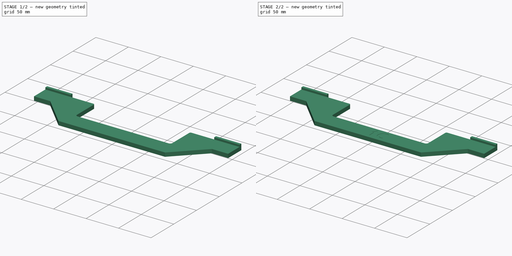
[diagram: build sequence overview — one tinted view per stage of 2, left to right]
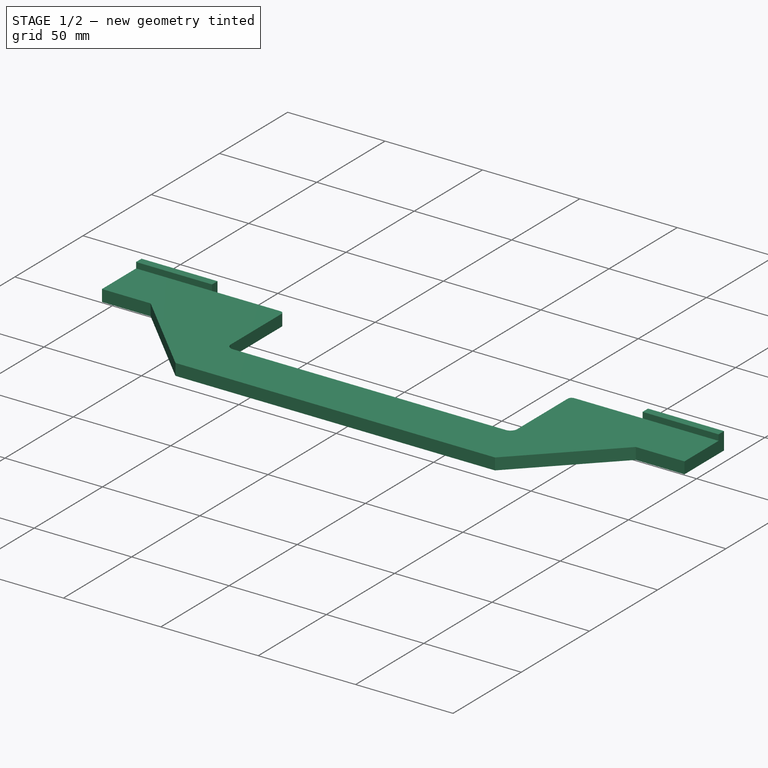
[diagram: stage 1 of 2 — iso view after this stage's code; geometry added in this stage tinted green]
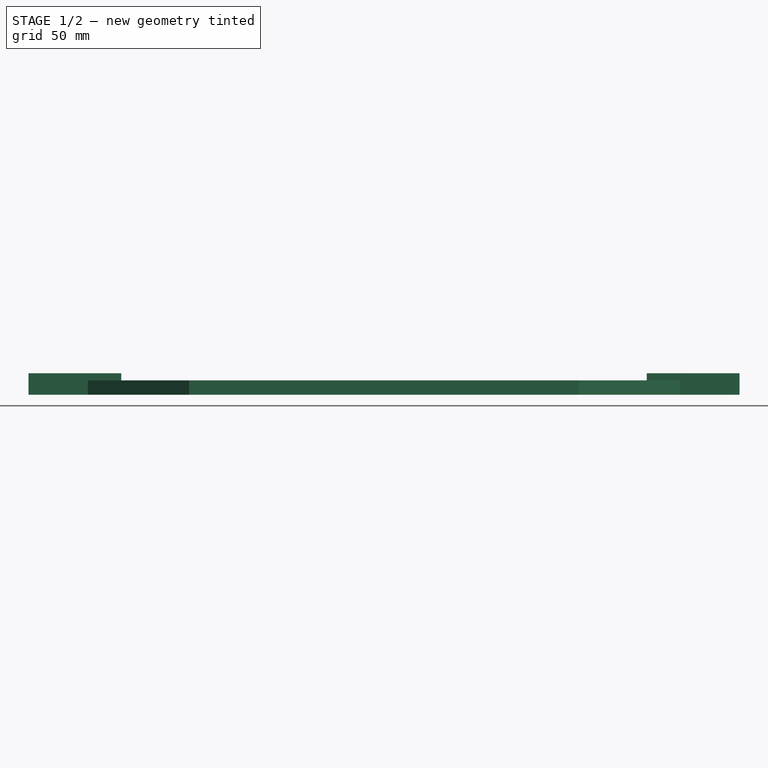
[diagram: stage 1 of 2 — front view after this stage's code; geometry added in this stage tinted green]
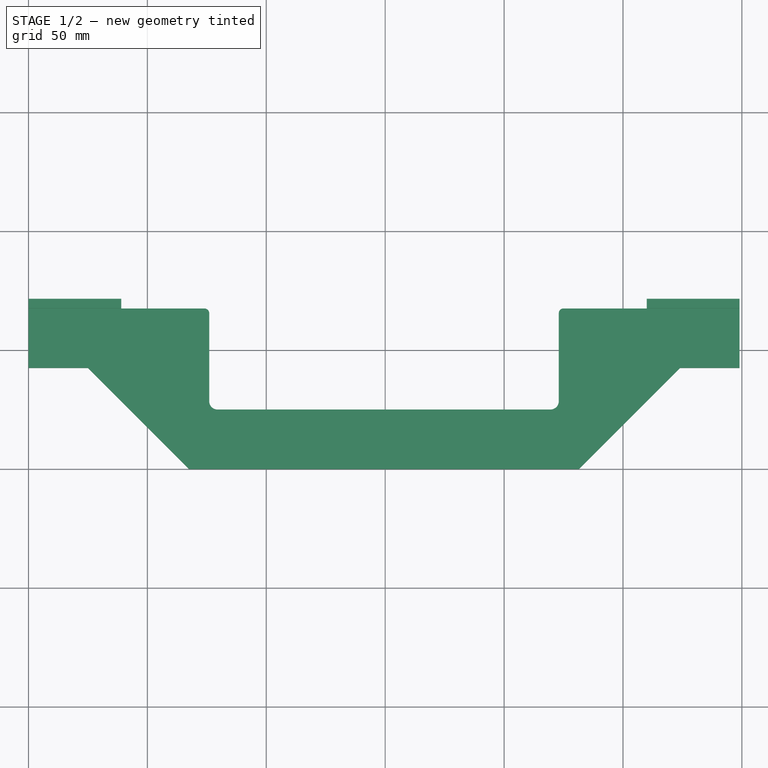
[diagram: stage 1 of 2 — top view after this stage's code; geometry added in this stage tinted green]
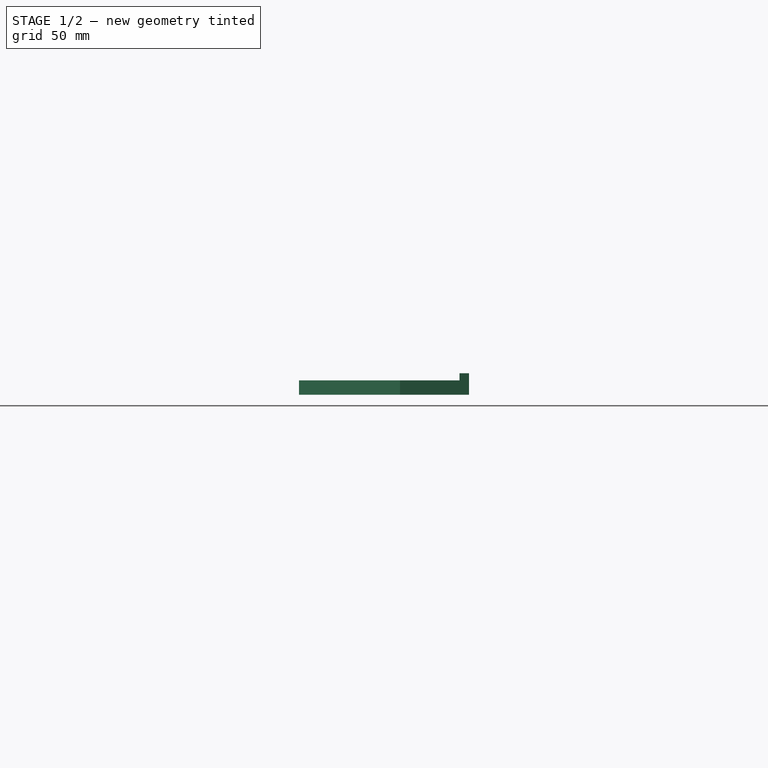
[diagram: stage 1 of 2 — right view after this stage's code; geometry added in this stage tinted green]
FCSTD DOCUMENT  (FreeCAD 1.0R39109 (Git))
Label: RearSheet
License: All rights reserved
LicenseURL: https://en.wikipedia.org/wiki/All_rights_reserved
objects: Sketcher::SketchObject×3, PartDesign::Pad×2, PartDesign::Pocket×1, PartDesign::Body×1
note: 16 computed .brp shape members not serialized (recipe doc carries the construction recipe); baked Part::Feature solids carry a one-line shape summary decoded from their .brp

FEATURE [Sketcher::SketchObject] Sketch001
  ArcFitTolerance = 1e-06
  AttachmentSupport = -> [XY_Plane]
  FullyConstrained = true
  MakeInternals = false
  MapMode = 5
  sketch-geometry (20):
    g0: LineSegment StartX=67.5 StartY=0 StartZ=0 EndX=231.5 EndY=0 EndZ=0
    g1: LineSegment StartX=299 StartY=42.5 StartZ=0 EndX=299 EndY=67.5 EndZ=0
    g2: LineSegment StartX=299 StartY=67.5 StartZ=0 EndX=225 EndY=67.5 EndZ=0
    g3: LineSegment StartX=223 StartY=65.5 StartZ=0 EndX=223 EndY=28.5 EndZ=0
    g4: LineSegment StartX=219.5 StartY=25 StartZ=0 EndX=79.5 EndY=25 EndZ=0
    g5: LineSegment StartX=76 StartY=28.5 StartZ=0 EndX=76 EndY=65.5 EndZ=0
    g6: LineSegment StartX=0 StartY=67.5 StartZ=0 EndX=0 EndY=42.5 EndZ=0
    g7: ArcOfCircle CenterX=79.5 CenterY=28.5 CenterZ=0 NormalX=0 NormalY=0 NormalZ=1 AngleXU=0 Radius=3.5 StartAngle=3.14159 EndAngle=4.71239
    g8: GeomPoint [constr] X=76 Y=25 Z=0
    g9: ArcOfCircle CenterX=219.5 CenterY=28.5 CenterZ=0 NormalX=0 NormalY=0 NormalZ=1 AngleXU=0 Radius=3.5 StartAngle=4.71239 EndAngle=6.28319
    g10: GeomPoint [constr] X=223 Y=25 Z=0
    g11: ArcOfCircle CenterX=225 CenterY=65.5 CenterZ=0 NormalX=0 NormalY=0 NormalZ=1 AngleXU=0 Radius=2 StartAngle=1.5708 EndAngle=3.14159
    g12: GeomPoint [constr] X=223 Y=67.5 Z=0
    g13: ArcOfCircle CenterX=74 CenterY=65.5 CenterZ=0 NormalX=0 NormalY=0 NormalZ=1 AngleXU=0 Radius=2 StartAngle=-9e-16 EndAngle=1.5708
    g14: GeomPoint [constr] X=76 Y=67.5 Z=0
    g15: LineSegment StartX=0 StartY=67.5 StartZ=0 EndX=74 EndY=67.5 EndZ=0
    g16: LineSegment StartX=299 StartY=42.5 StartZ=0 EndX=274 EndY=42.5 EndZ=0
    g17: LineSegment StartX=274 StartY=42.5 StartZ=0 EndX=231.5 EndY=0 EndZ=0
    g18: LineSegment StartX=0 StartY=42.5 StartZ=0 EndX=25 EndY=42.5 EndZ=0
    g19: LineSegment StartX=25 StartY=42.5 StartZ=0 EndX=67.5 EndY=0 EndZ=0
  constraints (52):
    c: Vertical(g1)
    c: Horizontal(g2)
    c: Vertical(g3)
    c: Horizontal(g4)
    c: Vertical(g5)
    c: PointOnObject(g6,g-2)
    c: Coincident(g1,g2)
    c: Horizontal(g12,g14)
    c: PointOnObject(g8,g5)
    c: PointOnObject(g8,g4)
    c: Tangent(g5,g7) = 1.5708
    c: Tangent(g4,g7) = 1.5708
    c: PointOnObject(g10,g4)
    c: PointOnObject(g10,g3)
    c: Tangent(g4,g9) = 1.5708
    c: Tangent(g3,g9) = 1.5708
    c: PointOnObject(g12,g3)
    c: PointOnObject(g12,g2)
    c: Tangent(g3,g11) = -1.5708
    c: Tangent(g2,g11) = -1.5708
    c: PointOnObject(g14,g5)
    c: Tangent(g5,g13) = -1.5708
    c: Equal(g7,g9)
    c: Equal(g11,g13)
    c: DistanceX(g5,g3) = 147
    c: DistanceY(g4,g13) = 42.5
    c: Radius(g7) = 3.5
    c: Radius(g13) = 2
    c: Horizontal(g0)
    c: Vertical(g6)
    c: PointOnObject(g0,g-1)
    c: Distance(g6,g-1) = 67.5
    c: DistanceX(g2,g2) = 74
    c: Coincident(g15,g6)
    c: Horizontal(g15)
    c: Tangent(g15,g13) = 1.5708
    c: Equal(g2,g15)
    c: DistanceY(g1,g1) = 25
    c: Coincident(g16,g1)
    c: Horizontal(g16)
    c: Coincident(g17,g16)
    c: Coincident(g17,g0)
    c: Angle(g17,g0) = 2.35619
    c: Coincident(g18,g6)
    c: Horizontal(g18)
    c: Coincident(g19,g18)
    c: Coincident(g19,g0)
    c: Angle(g0,g19) = 2.35619
    c: Equal(g18,g16)
    c: Equal(g1,g6)
    c: Distance(g16,g16) = 25
    c: Horizontal(g2,g13)
FEATURE [PartDesign::Pad] Pad
  Direction = (0,0,1)
  Length = 6
  Length2 = 10
  Profile = -> Sketch001
  ReferenceAxis = -> Sketch001 [N_Axis]
  Refine = true
  Suppressed = false
  Type = 0
FEATURE [Sketcher::SketchObject] Sketch002
  ArcFitTolerance = 1e-06
  AttachmentSupport = -> [XY_Plane]
  ExternalGeometry = -> [Pad]
  FullyConstrained = true
  MakeInternals = false
  MapMode = 5
  sketch-geometry (8):
    g0: LineSegment StartX=0 StartY=67.5 StartZ=0 EndX=39 EndY=67.5 EndZ=0
    g1: LineSegment StartX=39 StartY=67.5 StartZ=0 EndX=39 EndY=71.5 EndZ=0
    g2: LineSegment StartX=39 StartY=71.5 StartZ=0 EndX=0 EndY=71.5 EndZ=0
    g3: LineSegment StartX=0 StartY=71.5 StartZ=0 EndX=0 EndY=67.5 EndZ=0
    g4: LineSegment StartX=299 StartY=67.5 StartZ=0 EndX=299 EndY=71.5 EndZ=0
    g5: LineSegment StartX=299 StartY=71.5 StartZ=0 EndX=260 EndY=71.5 EndZ=0
    g6: LineSegment StartX=260 StartY=71.5 StartZ=0 EndX=260 EndY=67.5 EndZ=0
    g7: LineSegment StartX=260 StartY=67.5 StartZ=0 EndX=299 EndY=67.5 EndZ=0
  constraints (22):
    c: Coincident(g0,g1)
    c: Coincident(g1,g2)
    c: Coincident(g2,g3)
    c: Coincident(g3,g0)
    c: Horizontal(g0)
    c: Horizontal(g2)
    c: Vertical(g1)
    c: Vertical(g3)
    c: Coincident(g4,g5)
    c: Coincident(g5,g6)
    c: Coincident(g6,g7)
    c: Coincident(g7,g4)
    c: Vertical(g4)
    c: Vertical(g6)
    c: Horizontal(g5)
    c: Horizontal(g7)
    c: Distance(g3,g3) = 4
    c: DistanceX(g2,g2) = 39
    c: Equal(g1,g6)
    c: Equal(g2,g5)
    c: Coincident(g4,g-4)
    c: Coincident(g0,g-3)
FEATURE [PartDesign::Pad] Pad001
  BaseFeature = -> Pad
  Direction = (0,0,1)
  Length = 9
  Length2 = 10
  Profile = -> Sketch002
  ReferenceAxis = -> Sketch002 [N_Axis]
  Refine = true
  Suppressed = false
  Type = 0
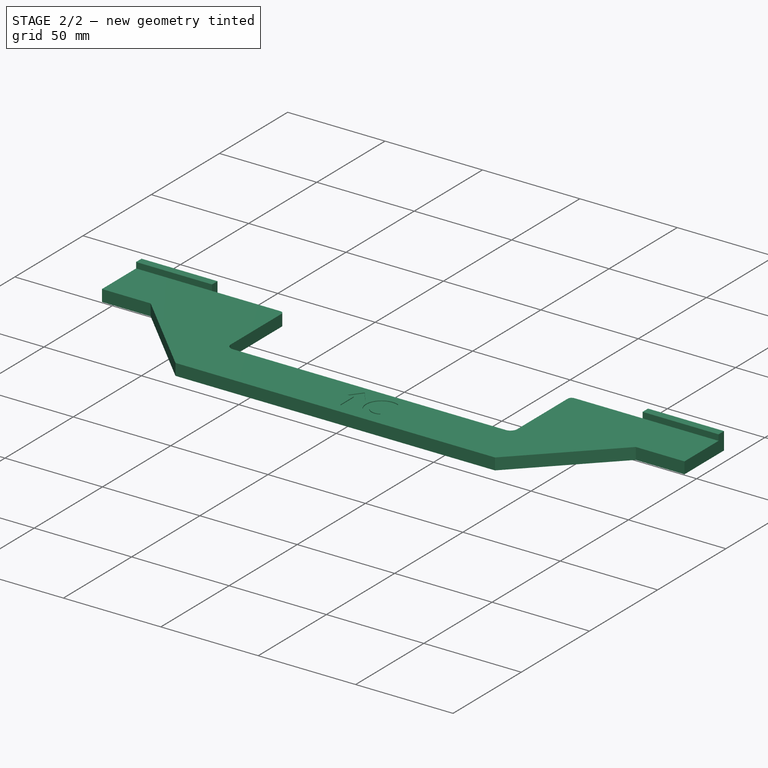
[diagram: stage 2 of 2 — iso view after this stage's code; geometry added in this stage tinted green]
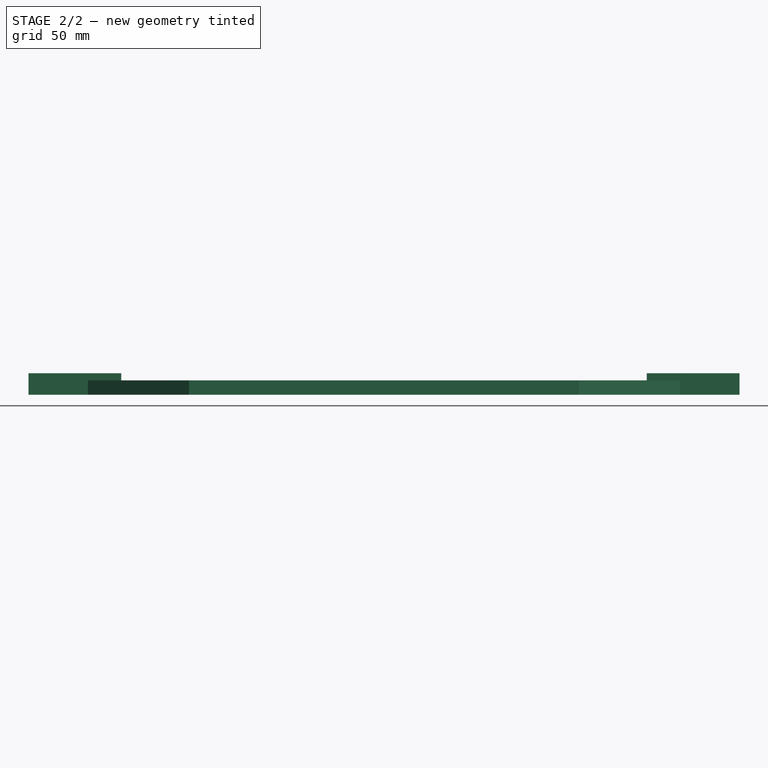
[diagram: stage 2 of 2 — front view after this stage's code; geometry added in this stage tinted green]
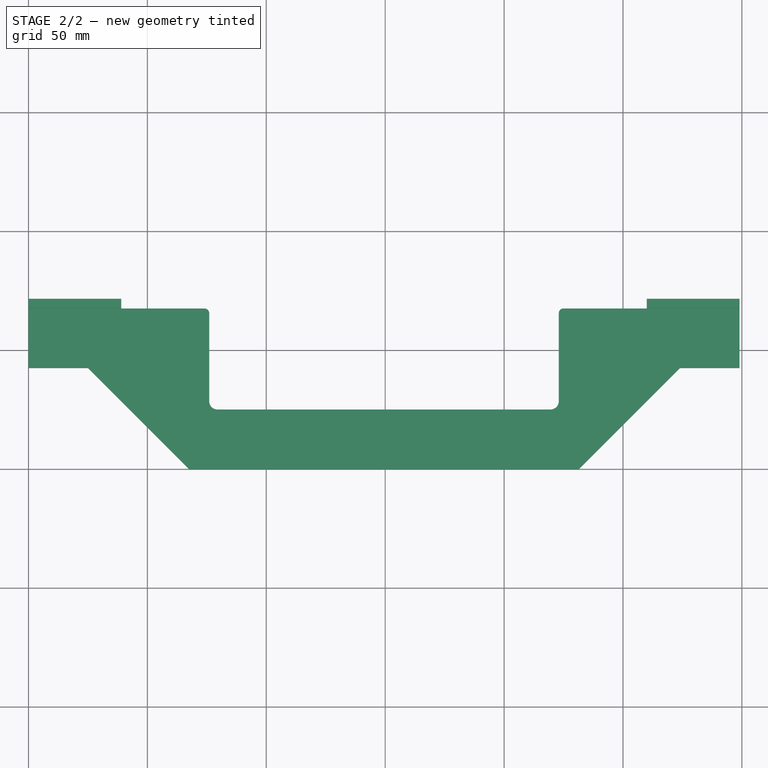
[diagram: stage 2 of 2 — top view after this stage's code; geometry added in this stage tinted green]
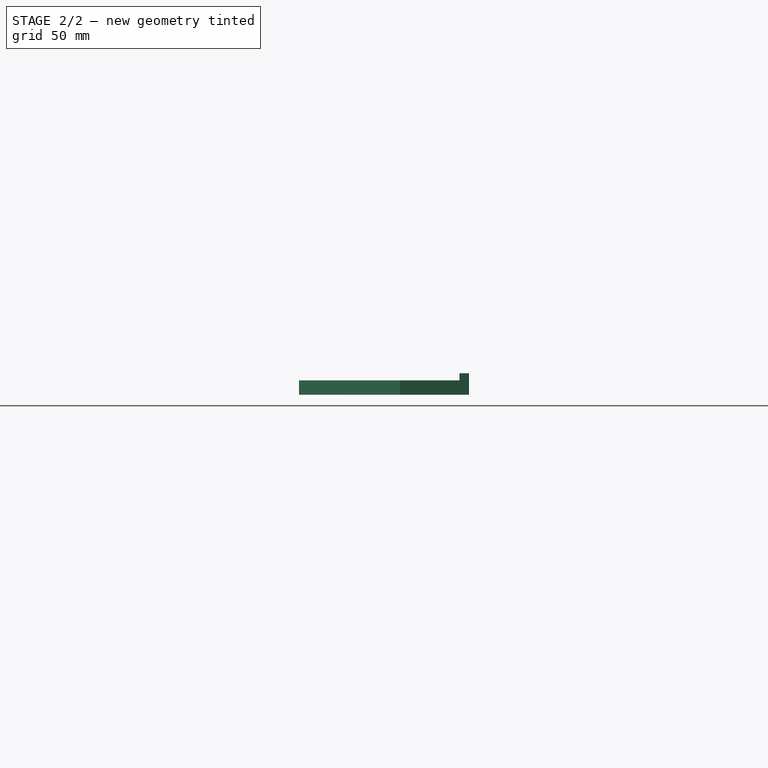
[diagram: stage 2 of 2 — right view after this stage's code; geometry added in this stage tinted green]
FEATURE [Sketcher::SketchObject] Sketch
  ArcFitTolerance = 1e-06
  AttachmentSupport = -> [Pad001]
  ExternalGeometry = -> [Pad001]
  FullyConstrained = true
  MakeInternals = false
  MapMode = 5
  Placement = pos=(0,0,6) rot=(0,0,1;0rad)
  sketch-geometry (11):
    g0: LineSegment StartX=144.9 StartY=15.5 StartZ=0 EndX=149.5 EndY=21.5 EndZ=0
    g1: LineSegment StartX=149.5 StartY=21.5 StartZ=0 EndX=154.1 EndY=15.5 EndZ=0
    g2: LineSegment StartX=154.1 StartY=15.5 StartZ=0 EndX=150.9 EndY=15.5 EndZ=0
    g3: LineSegment StartX=150.9 StartY=15.5 StartZ=0 EndX=150.9 EndY=5.5 EndZ=0
    g4: LineSegment StartX=150.9 StartY=5.5 StartZ=0 EndX=148.1 EndY=5.5 EndZ=0
    g5: LineSegment StartX=148.1 StartY=5.5 StartZ=0 EndX=148.1 EndY=15.5 EndZ=0
    g6: LineSegment StartX=148.1 StartY=15.5 StartZ=0 EndX=144.9 EndY=15.5 EndZ=0
    g7: ArcOfCircle CenterX=164.5 CenterY=12.5961 CenterZ=0 NormalX=0 NormalY=0 NormalZ=1 AngleXU=0 Radius=8 StartAngle=1.09083 EndAngle=5.19235
    g8: ArcOfCircle CenterX=164.5 CenterY=12.5961 CenterZ=0 NormalX=0 NormalY=0 NormalZ=1 AngleXU=0 Radius=5.21637 StartAngle=1.04403 EndAngle=5.23915
    g9: LineSegment StartX=167.122 StartY=17.1053 StartZ=0 EndX=168.194 EndY=19.6922 EndZ=0
    g10: LineSegment StartX=167.122 StartY=8.08686 StartZ=0 EndX=168.194 EndY=5.5 EndZ=0
  constraints (34):
    c: Coincident(g1,g0)
    c: Coincident(g2,g1)
    c: Horizontal(g2)
    c: Coincident(g3,g2)
    c: Vertical(g3)
    c: Coincident(g4,g3)
    c: Horizontal(g4)
    c: Coincident(g5,g4)
    c: Vertical(g5)
    c: Coincident(g6,g5)
    c: Coincident(g6,g0)
    c: Horizontal(g6)
    c: Equal(g6,g2)
    c: Horizontal(g5,g2)
    c: Equal(g1,g0)
    c: DistanceY(g0,g0) = 6
    c: Distance(g6,g6) = 3.2
    c: DistanceY(g5,g5) = 10
    c: Distance(g4,g4) = 2.8
    c: Coincident(g8,g7)
    c: Coincident(g9,g8)
    c: Coincident(g9,g7)
    c: Coincident(g10,g8)
    c: Coincident(g10,g7)
    c: Vertical(g8,g8)
    c: Vertical(g7,g7)
    c: Distance(g9,g9) = 2.8
    c: Radius(g7) = 8
    c: Angle(g10,g9) = 2.35619
    c: Angle(g7) = 4.10152
    c: DistanceX(g0,g7) = 15
    c: Horizontal(g7,g3)
    c: DistanceX(g-3,g0) = 73.5
    c: DistanceY(g0,g-3) = 7
FEATURE [PartDesign::Pocket] Pocket
  BaseFeature = -> Pad001
  Direction = (0,0,-1)
  Length = 0.4
  Length2 = 5
  Profile = -> Sketch
  ReferenceAxis = -> Sketch [N_Axis]
  Refine = true
  Suppressed = false
  Type = 0
FEATURE [PartDesign::Body] Body  label="ExhaustExit"
  AllowCompound = false
  Group = -> [Sketch001,Pad,Sketch002,Pad001,Sketch,Pocket]
  Origin = -> Origin
  Tip = -> Pocket
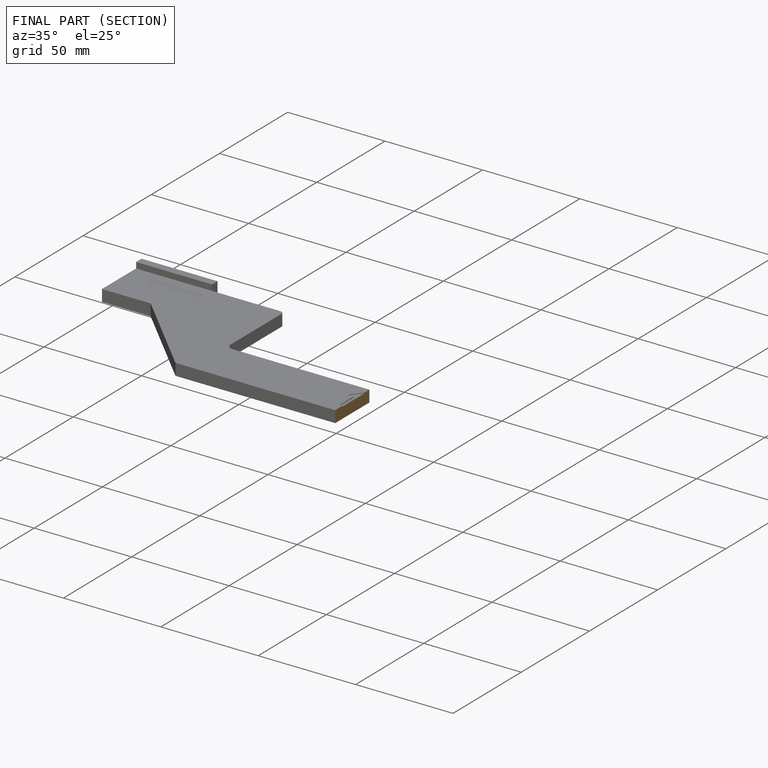
[diagram: finished part — half-section view (interior)]
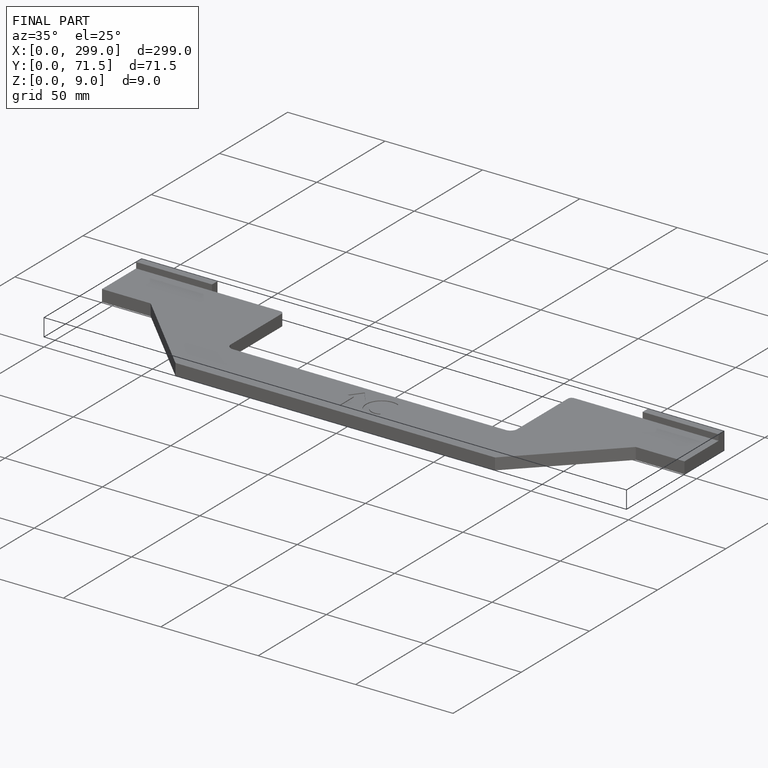
[diagram: finished part — iso view with bounding-box wireframe]
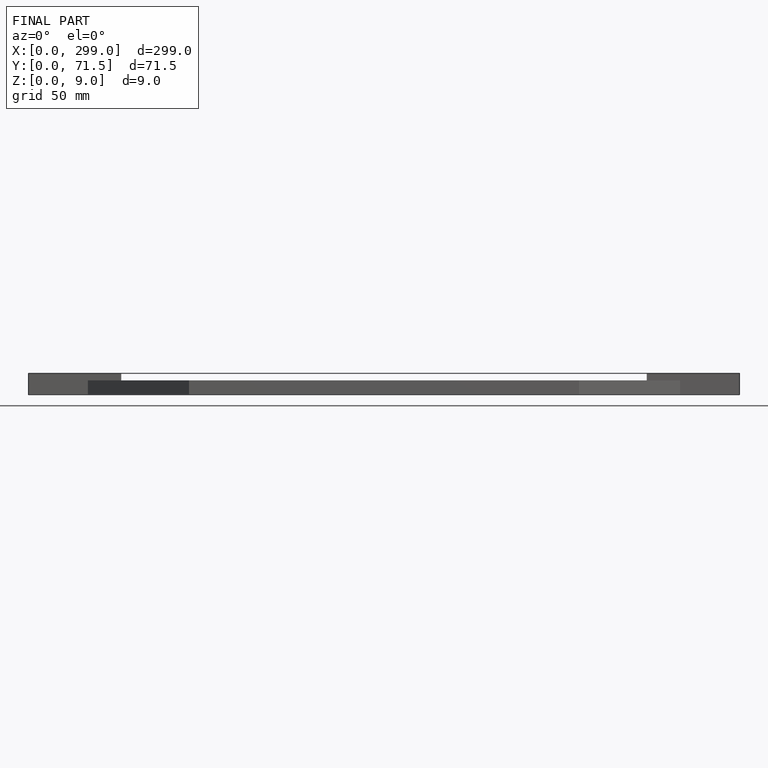
[diagram: finished part — front view with bounding-box wireframe]
